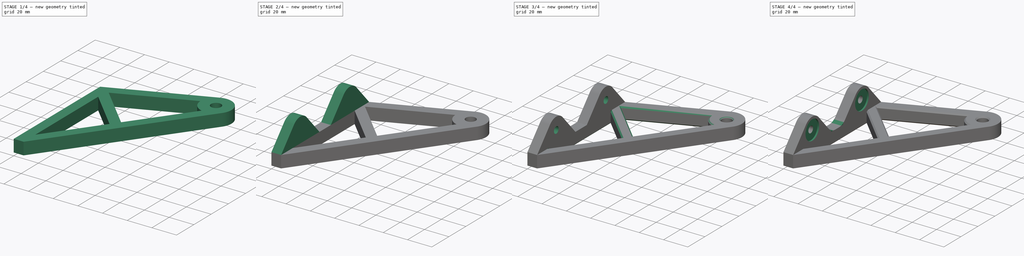
[diagram: build sequence overview — one tinted view per stage of 4, left to right]
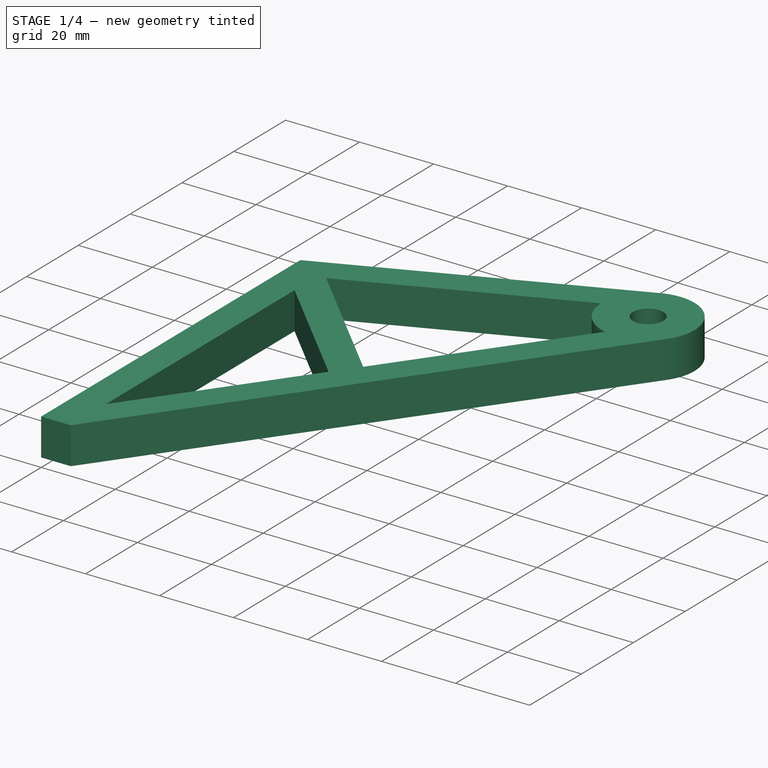
[diagram: stage 1 of 4 — iso view after this stage's code; geometry added in this stage tinted green]
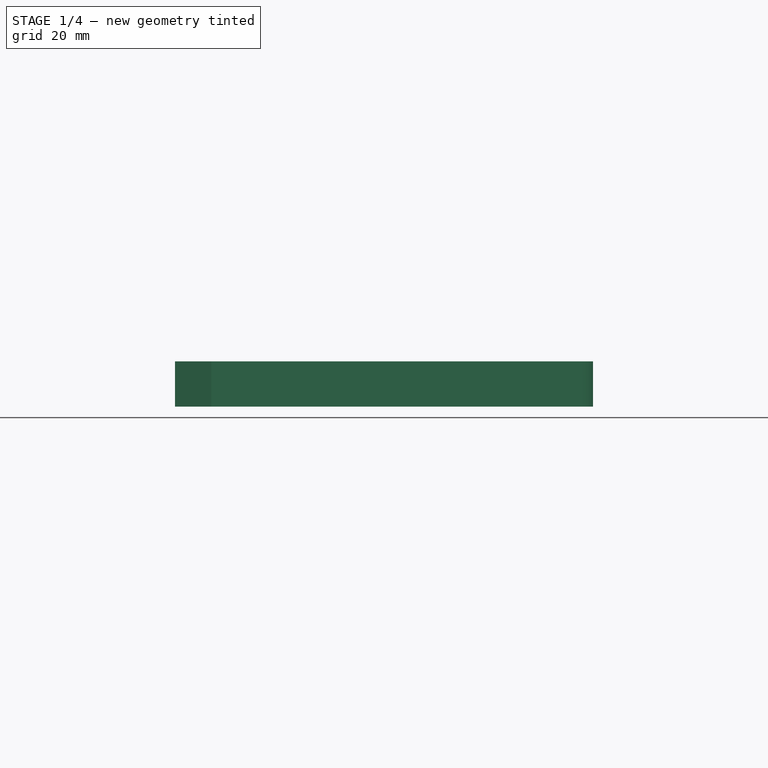
[diagram: stage 1 of 4 — front view after this stage's code; geometry added in this stage tinted green]
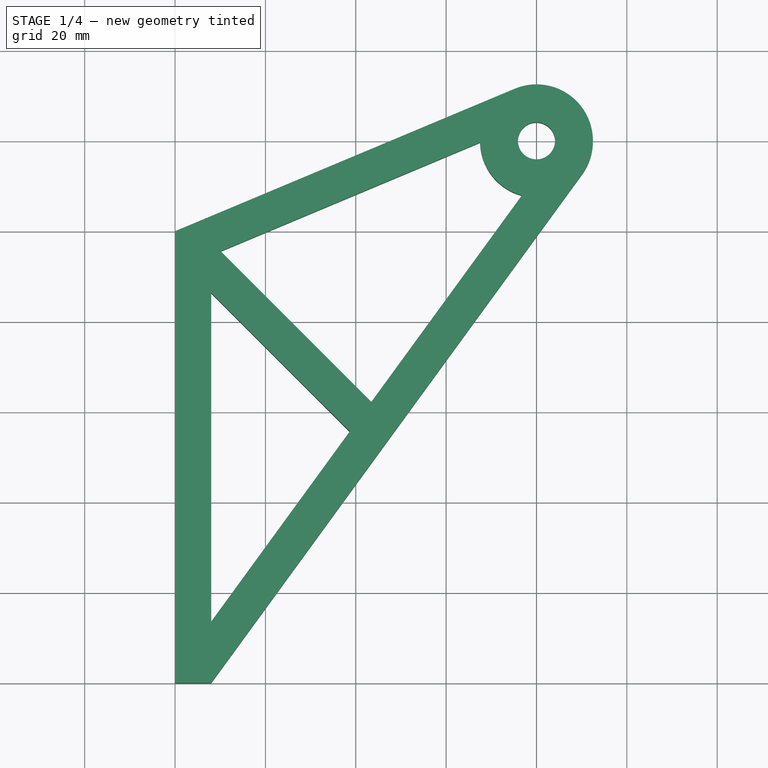
[diagram: stage 1 of 4 — top view after this stage's code; geometry added in this stage tinted green]
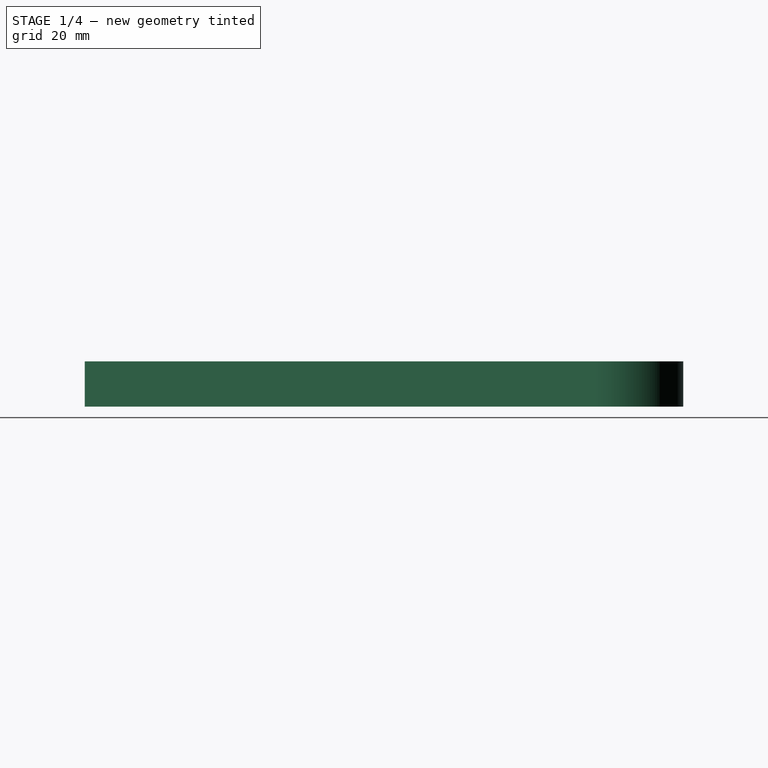
[diagram: stage 1 of 4 — right view after this stage's code; geometry added in this stage tinted green]
FCSTD DOCUMENT  (FreeCAD 0.19R23578 (Git))
Label: tube_attachment
License: All rights reserved
LicenseURL: http://en.wikipedia.org/wiki/All_rights_reserved
objects: Sketcher::SketchObject×6, PartDesign::Pocket×4, PartDesign::Pad×2, PartDesign::Plane×2, PartDesign::Chamfer×2, Spreadsheet::Sheet×1, PartDesign::Fillet×1, PartDesign::Body×1
note: 27 computed .brp shape members not serialized (recipe doc carries the construction recipe); baked Part::Feature solids carry a one-line shape summary decoded from their .brp

FEATURE [Sketcher::SketchObject] Sketch
  MapMode = 5
  Support = -> [XY_Plane]
  expr: Constraints[16] = Spreadsheet.pad_thickness
  expr: Constraints[6] = Spreadsheet.pad_height
  expr: Constraints[7] = Spreadsheet.pad_thickness
  expr: Constraints[9] = Spreadsheet.tube_diameter + Spreadsheet.tube_diameter_tol
  expr: Constraints[14] = Spreadsheet.tube_y_distance
  expr: Constraints[10] = Spreadsheet.tube_wall_distance
  sketch-geometry (7):
    g0: LineSegment StartX=0 StartY=0 StartZ=0 EndX=0 EndY=100 EndZ=0
    g1: LineSegment StartX=0 StartY=100 StartZ=0 EndX=75.1651 EndY=131.527 EndZ=0
    g2: ArcOfCircle CenterX=80 CenterY=120 CenterZ=0 NormalX=0 NormalY=0 NormalZ=1 AngleXU=0 Radius=12.5 StartAngle=5.65332 EndAngle=8.25113
    g3: LineSegment StartX=90.1014 StartY=112.637 StartZ=0 EndX=8 EndY=0 EndZ=0
    g4: LineSegment StartX=8 StartY=0 StartZ=0 EndX=0 EndY=0 EndZ=0
    g5: Circle CenterX=80 CenterY=120 CenterZ=0 NormalX=0 NormalY=0 NormalZ=1 AngleXU=0 Radius=4.1
    g6: GeomPoint X=8 Y=103.356 Z=0
  constraints (17):
    c: Coincident(g0,g-1)
    c: PointOnObject(g0,g-2)
    c: Coincident(g1,g0)
    c: PointOnObject(g3,g-1)
    c: Coincident(g4,g3)
    c: Coincident(g4,g0)
    c: DistanceY(g0,g0) = 100
    c: DistanceX(g4,g4) = 8
    c: Coincident(g5,g2)
    c: Diameter(g5) = 8.2
    c: DistanceX(g0,g2) = 80
    c: Tangent(g2,g3) = 1.5708
    c: Tangent(g2,g1) = 1.5708
    c: Diameter(g2) = 25  'outer_diameter'
    c: DistanceY(g0,g2) = 120
    c: PointOnObject(g6,g1)
    c: DistanceX(g0,g6) = 8
FEATURE [Spreadsheet::Sheet] Spreadsheet
  cells = A1=pad_height; B1(pad_height)=100; A2=pad_width; B2(pad_width)=20; A3=pad_thickness; B3(pad_thickness)=8; A4=tube_diameter; B4(tube_diameter)=8; A5=tube_diameter_tol; B5(tube_diameter_tol)=0.2; A6=tube_wall_distance; B6(tube_wall_distance)=80; A7=tube_y_distance; B7(tube_y_distance)=120; A8=part_thickness; B8(part_thickness)=10; A9=hole_distance; B9(hole_distance)=10; A10=pad_length; B10(pad_length)==(pad_height - 10) / 2; A11=screw_hole_dia; B11(screw_hole_dia)=5.5; A12=washer_pocket_dia; B12(washer_pocket_dia)=16
FEATURE [PartDesign::Pad] Pad
  Direction = (1,1,1)
  Length = 10
  Length2 = 100
  Profile = -> Sketch
  Type = 0
  expr: Length = Spreadsheet.part_thickness
FEATURE [PartDesign::Plane] DatumPlane
  AttachmentOffset = pos=(0,0,10) rot=(0,0,1;0rad)
  Length = 144.661
  MapMode = 5
  Placement = pos=(0,0,10) rot=(0,0,1;0rad)
  ResizeMode = 0
  Support = -> [XY_Plane]
  Width = 184.665
  expr: .AttachmentOffset.Base.z = Spreadsheet.part_thickness
FEATURE [Sketcher::SketchObject] Sketch001
  ExternalGeometry = -> [Sketch]
  MapMode = 5
  Placement = pos=(0,0,10) rot=(0,0,1;0rad)
  Support = -> [DatumPlane]
  expr: Constraints[15] = Sketch.Constraints.outer_diameter
  expr: Constraints[33] = Spreadsheet.pad_thickness / 2
  expr: Constraints[22] = Spreadsheet.pad_thickness
  expr: Constraints[29] = Spreadsheet.pad_thickness / 2
  expr: Constraints[38] = Spreadsheet.pad_thickness
  expr: Constraints[37] = Spreadsheet.pad_thickness
  sketch-geometry (13):
    g0: LineSegment StartX=8 StartY=13.5816 StartZ=0 EndX=8 EndY=86.3431 EndZ=0
    g1: LineSegment StartX=8 StartY=13.5816 StartZ=0 EndX=38.6761 EndY=55.667 EndZ=0
    g2: LineSegment StartX=38.6761 StartY=55.667 StartZ=0 EndX=8 EndY=86.3431 EndZ=0
    g3: LineSegment StartX=0 StartY=100 StartZ=0 EndX=46.787 EndY=53.213 EndZ=0
    g4: ArcOfCircle CenterX=80 CenterY=120 CenterZ=0 NormalX=0 NormalY=0 NormalZ=1 AngleXU=0 Radius=12.5 StartAngle=3.17047 EndAngle=4.4508
    g5: LineSegment StartX=67.5052 StartY=119.639 StartZ=0 EndX=10.097 EndY=95.5598 EndZ=0
    g6: LineSegment StartX=10.097 StartY=95.5598 StartZ=0 EndX=43.446 EndY=62.2109 EndZ=0
    g7: LineSegment StartX=76.7673 StartY=107.925 StartZ=0 EndX=43.446 EndY=62.2109 EndZ=0
    g8: LineSegment StartX=51.8152 StartY=113.058 StartZ=0 EndX=48.7209 EndY=120.435 EndZ=0
    g9: LineSegment StartX=244.157 StartY=-138.5 StartZ=0 EndX=241.328 EndY=-141.328 EndZ=0
    g10: LineSegment StartX=56.7895 StartY=80.5173 StartZ=0 EndX=63.2544 EndY=75.805 EndZ=0
    g11: LineSegment StartX=236.61 StartY=-142.267 StartZ=0 EndX=239.439 EndY=-139.439 EndZ=0
    g12: LineSegment StartX=20.9716 StartY=31.3776 StartZ=0 EndX=27.4364 EndY=26.6654 EndZ=0
  constraints (39):
    c: Coincident(g1,g0)
    c: Coincident(g2,g0)
    c: Coincident(g2,g1)
    c: Coincident(g3,g-3)
    c: Angle(g-3,g3) = 0.785398
    c: PointOnObject(g3,g-4)
    c: Parallel(g2,g3)
    c: Parallel(g1,g-4)
    c: Vertical(g0,g-4)
    c: Parallel(g0,g-3)
    c: Coincident(g4,g-5)
    c: Coincident(g5,g4)
    c: Coincident(g6,g5)
    c: Coincident(g7,g4)
    c: Coincident(g7,g6)
    c: Diameter(g4) = 25
    c: Parallel(g7,g-4)
    c: Parallel(g5,g-6)
    c: Parallel(g6,g3)
    c: PointOnObject(g8,g5)
    c: PointOnObject(g8,g-6)
    c: Perpendicular(g5,g8)
    c: Distance(g8) = 8
    c: PointOnObject(g9,g6)
    c: PointOnObject(g9,g3)
    c: Perpendicular(g6,g9)
    c: PointOnObject(g10,g7)
    c: PointOnObject(g10,g-4)
    c: Perpendicular(g7,g10)
    c: Distance(g9) = 4
    c: PointOnObject(g11,g2)
    c: PointOnObject(g11,g3)
    c: Perpendicular(g2,g11)
    c: Distance(g11) = 4
    c: PointOnObject(g12,g1)
    c: PointOnObject(g12,g-4)
    c: Perpendicular(g1,g12)
    c: Distance(g12) = 8
    c: Distance(g10) = 8
FEATURE [PartDesign::Pocket] Pocket
  BaseFeature = -> Pad
  Length = 10
  Length2 = 100
  Profile = -> Sketch001
  Type = 0
  expr: Length = Spreadsheet.part_thickness
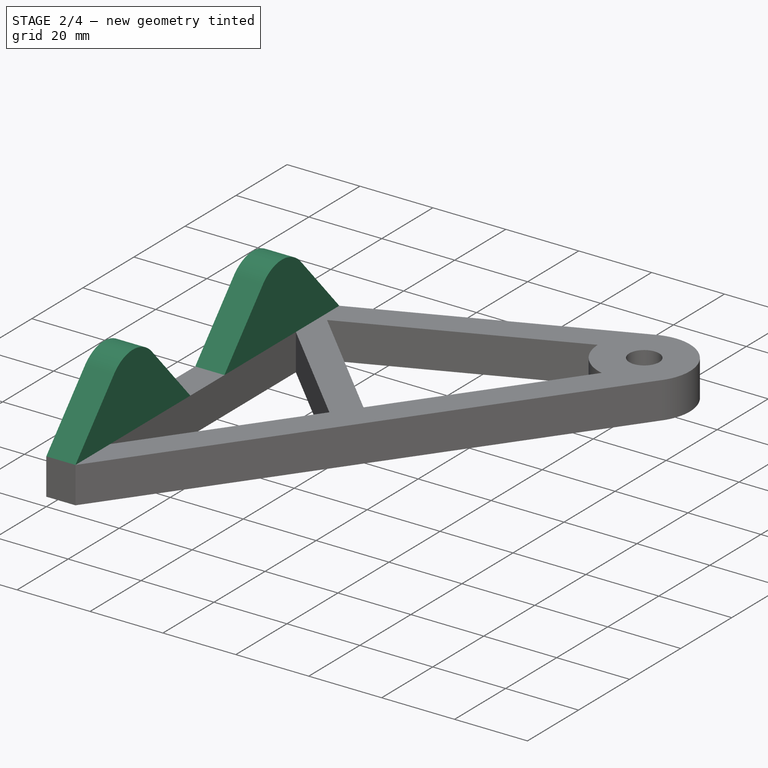
[diagram: stage 2 of 4 — iso view after this stage's code; geometry added in this stage tinted green]
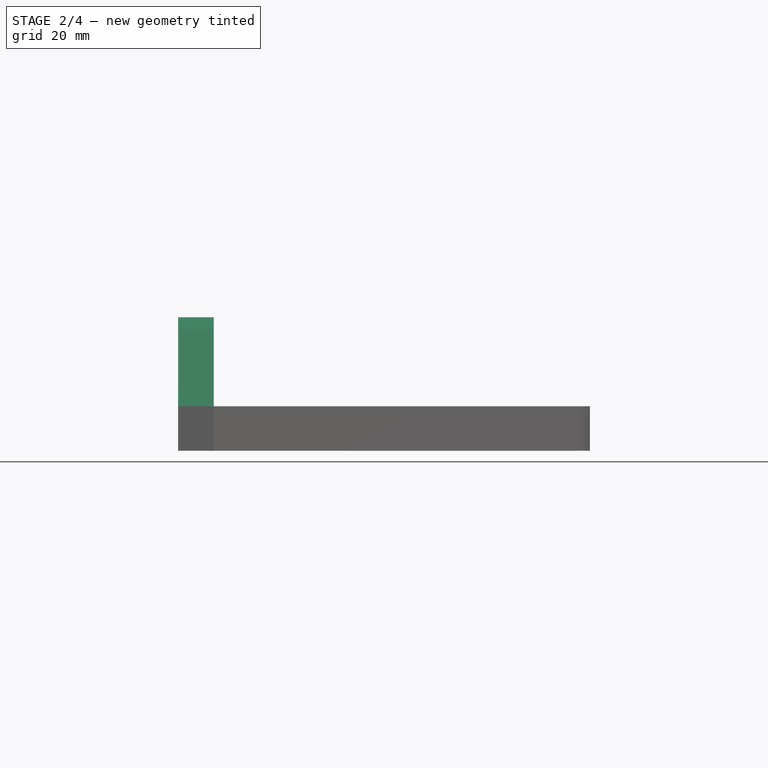
[diagram: stage 2 of 4 — front view after this stage's code; geometry added in this stage tinted green]
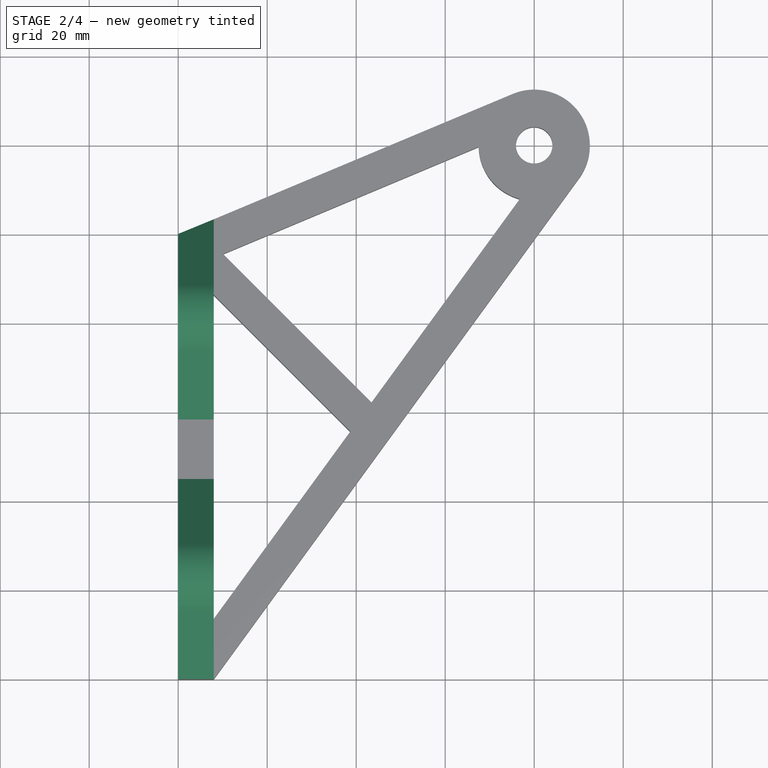
[diagram: stage 2 of 4 — top view after this stage's code; geometry added in this stage tinted green]
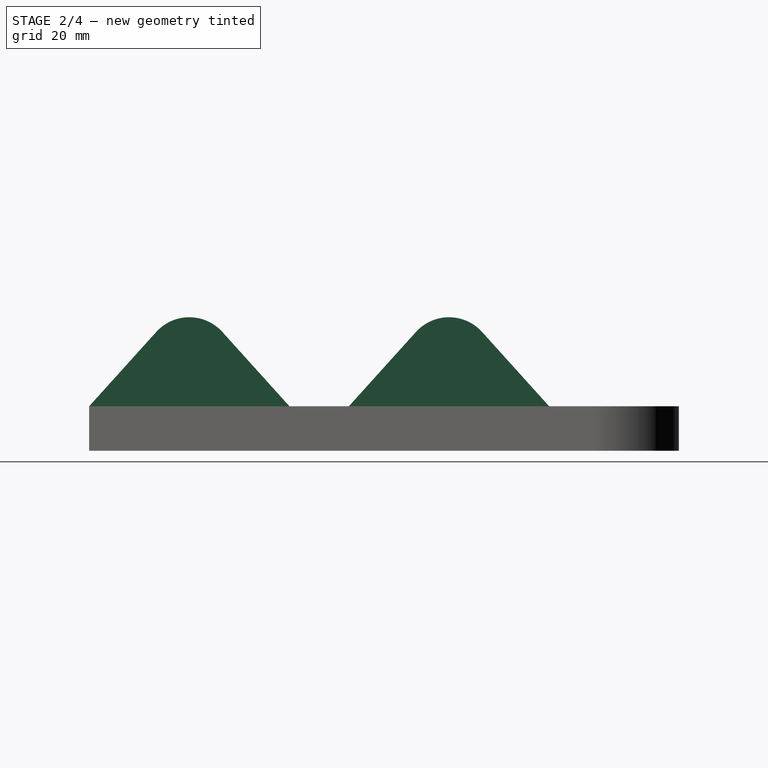
[diagram: stage 2 of 4 — right view after this stage's code; geometry added in this stage tinted green]
FEATURE [PartDesign::Plane] DatumPlane001
  Length = 176.077
  MapMode = 7
  Placement = pos=(8,0,0) rot=(0.57735,0.57735,0.57735;2.0944rad)
  ResizeMode = 0
  Support = -> [Sketch]
  Width = 73.6124
FEATURE [Sketcher::SketchObject] Sketch002
  ExternalGeometry = -> [Sketch]
  MapMode = 5
  Placement = pos=(8,0,0) rot=(0.57735,0.57735,0.57735;2.0944rad)
  Support = -> [DatumPlane001]
  expr: Constraints[10] = Spreadsheet.part_thickness
  expr: Constraints[27] = Spreadsheet.pad_length
  expr: Constraints[55] = Spreadsheet.pad_width - Spreadsheet.hole_distance
  expr: Constraints[26] = Spreadsheet.hole_distance
  expr: Constraints[32] = Spreadsheet.hole_distance
  expr: Constraints[33] = Spreadsheet.pad_length
  expr: .Constraints.top_radius = Spreadsheet.pad_width - Spreadsheet.hole_distance
  sketch-geometry (19):
    g0: LineSegment StartX=103.356 StartY=0 StartZ=0 EndX=0 EndY=0 EndZ=0
    g1: LineSegment StartX=0 StartY=0 StartZ=0 EndX=0 EndY=10 EndZ=0
    g2: LineSegment StartX=0 StartY=10 StartZ=0 EndX=103.356 EndY=10 EndZ=0
    g3: LineSegment StartX=103.356 StartY=10 StartZ=0 EndX=103.356 EndY=0 EndZ=0
    g4: LineSegment StartX=0 StartY=10 StartZ=0 EndX=15.0773 EndY=26.701 EndZ=0
    g5: LineSegment StartX=29.9227 StartY=26.701 StartZ=0 EndX=45 EndY=10 EndZ=0
    g6: ArcOfCircle CenterX=22.5 CenterY=20 CenterZ=0 NormalX=0 NormalY=0 NormalZ=1 AngleXU=0 Radius=10 StartAngle=0.734348 EndAngle=2.40725
    g7: LineSegment StartX=51.6778 StartY=0 StartZ=0 EndX=51.6778 EndY=32.54 EndZ=0
    g8: LineSegment StartX=0 StartY=4 StartZ=0 EndX=51.6778 EndY=4 EndZ=0
    g9: LineSegment StartX=51.6778 StartY=4 StartZ=0 EndX=103.356 EndY=4 EndZ=0
    g10: LineSegment StartX=103.356 StartY=10 StartZ=0 EndX=88.2781 EndY=26.701 EndZ=0
    g11: ArcOfCircle CenterX=80.8554 CenterY=20 CenterZ=0 NormalX=0 NormalY=0 NormalZ=1 AngleXU=0 Radius=10 StartAngle=0.734347 EndAngle=2.40725
    g12: LineSegment StartX=73.4327 StartY=26.701 StartZ=0 EndX=58.3555 EndY=10 EndZ=0
    g13: LineSegment StartX=45 StartY=10 StartZ=0 EndX=58.3555 EndY=10 EndZ=0
    g14: LineSegment StartX=0 StartY=10 StartZ=0 EndX=-25 EndY=10 EndZ=0
    g15: LineSegment StartX=103.356 StartY=10 StartZ=0 EndX=128.356 EndY=10 EndZ=0
    g16: LineSegment StartX=-25 StartY=10 StartZ=0 EndX=-25 EndY=50 EndZ=0
    g17: LineSegment StartX=-25 StartY=50 StartZ=0 EndX=128.356 EndY=50 EndZ=0
    g18: LineSegment StartX=128.356 StartY=50 StartZ=0 EndX=128.356 EndY=10 EndZ=0
  constraints (58):
    c: Coincident(g0,g1)
    c: Coincident(g1,g2)
    c: Coincident(g2,g3)
    c: Coincident(g3,g0)
    c: Horizontal(g0)
    c: Horizontal(g2)
    c: Vertical(g1)
    c: Vertical(g3)
    c: Coincident(g0,g-3)
    c: PointOnObject(g1,g-2)
    c: Distance(g3) = 10
    c: Coincident(g4,g1)
    c: PointOnObject(g5,g2)
    c: Coincident(g6,g4)
    c: Coincident(g6,g5)
    c: PointOnObject(g7,g0)
    c: Vertical(g7)
    c: PointOnObject(g8,g1)
    c: PointOnObject(g8,g7)
    c: Horizontal(g8)
    c: Coincident(g9,g8)
    c: PointOnObject(g9,g3)
    c: Horizontal(g9)
    c: Equal(g9,g8)
    c: Tangent(g6,g5)
    c: Tangent(g6,g4)
    c: DistanceY(g4,g6) = 10
    c: DistanceX(g4,g5) = 45
    c: Coincident(g11,g10)
    c: Coincident(g11,g12)
    c: Tangent(g11,g12)
    c: Tangent(g11,g10)
    c: DistanceY(g10,g11) = 10
    c: DistanceX(g12,g10) = 45
    c: Coincident(g10,g2)
    c: PointOnObject(g12,g2)
    c: Coincident(g13,g5)
    c: Coincident(g13,g12)
    c: Coincident(g14,g4)
    c: Horizontal(g14)
    c: Coincident(g15,g10)
    c: Horizontal(g15)
    c: Coincident(g16,g14)
    c: Vertical(g16)
    c: Coincident(g17,g16)
    c: Horizontal(g17)
    c: Coincident(g18,g17)
    c: Vertical(g18)
    c: Coincident(g18,g15)
    c: DistanceY(g18,g18) = 40
    c: DistanceX(g15,g15) = 25
    c: Equal(g15,g14)
    c: DistanceY(g0,g9) = 4
    c: Distance(g7) = 32.54
    c: Radius(g6) = 10  'top_radius'
    c: Radius(g11) = 10
    c: Horizontal(g5,g4)
    c: Horizontal(g11,g10)
FEATURE [Sketcher::SketchObject] Sketch003
  ExternalGeometry = -> [Sketch002,Sketch]
  MapMode = 5
  Placement = pos=(0,0,10) rot=(0,0,1;0rad)
  Support = -> [DatumPlane]
  sketch-geometry (4):
    g0: LineSegment StartX=0 StartY=100 StartZ=0 EndX=0 EndY=0 EndZ=0
    g1: LineSegment StartX=8 StartY=0 StartZ=0 EndX=0 EndY=0 EndZ=0
    g2: LineSegment StartX=0 StartY=100 StartZ=0 EndX=8 EndY=103.356 EndZ=0
    g3: LineSegment StartX=8 StartY=103.356 StartZ=0 EndX=8 EndY=0 EndZ=0
  constraints (10):
    c: Coincident(g0,g-4)
    c: PointOnObject(g0,g-1)
    c: Vertical(g0)
    c: PointOnObject(g1,g-1)
    c: Coincident(g1,g0)
    c: Coincident(g2,g0)
    c: Coincident(g2,g-3)
    c: Coincident(g3,g2)
    c: Coincident(g3,g1)
    c: Vertical(g3)
FEATURE [PartDesign::Pad] Pad001
  BaseFeature = -> Pocket
  Direction = (1,1,1)
  Length = 20
  Length2 = 100
  Profile = -> Sketch003
  Type = 0
  expr: Length = Spreadsheet.pad_width
FEATURE [PartDesign::Pocket] Pocket001
  BaseFeature = -> Pad001
  Length = 10
  Length2 = 100
  Profile = -> Sketch002
  Type = 0
  expr: Length = Spreadsheet.part_thickness
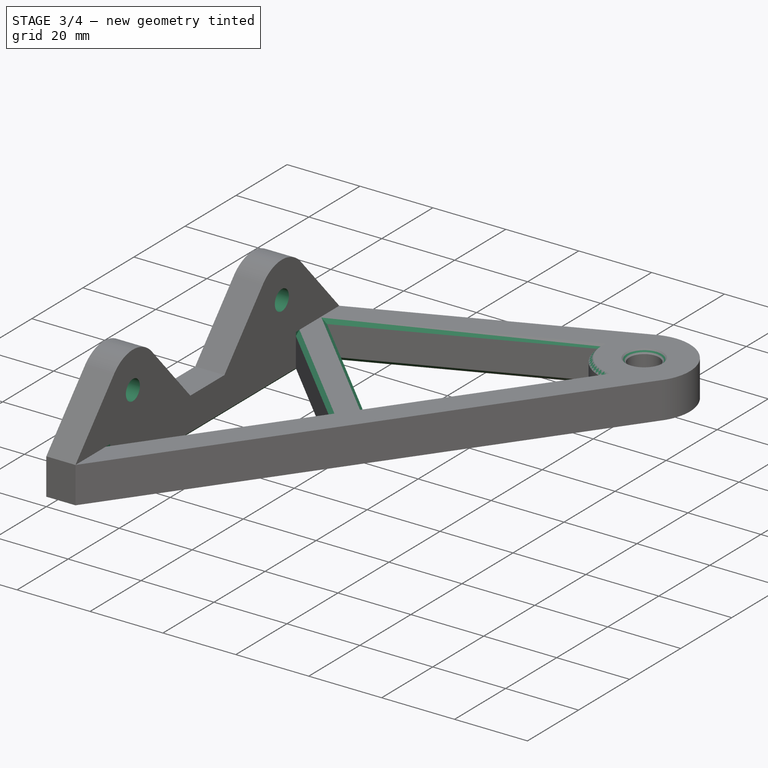
[diagram: stage 3 of 4 — iso view after this stage's code; geometry added in this stage tinted green]
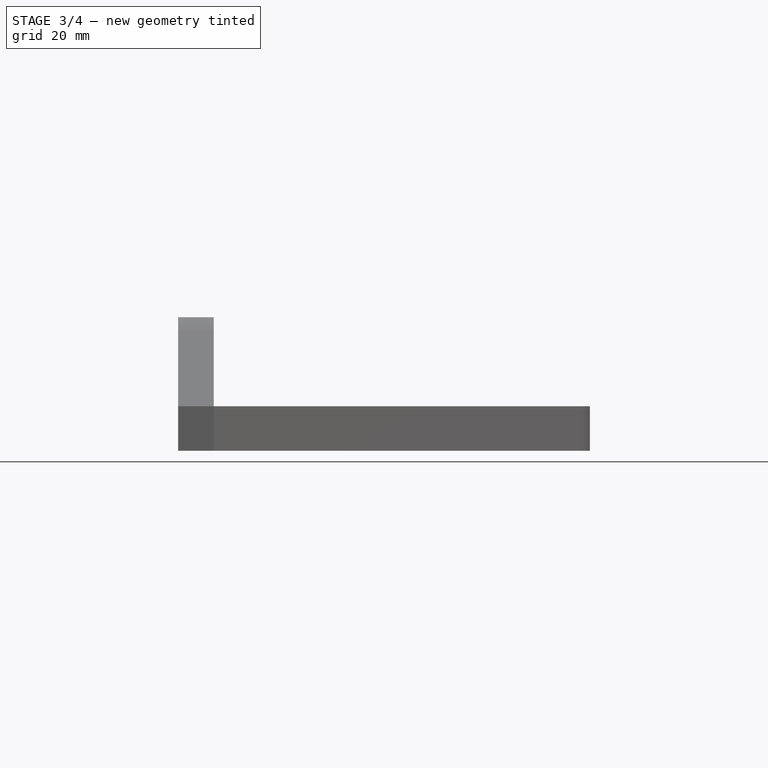
[diagram: stage 3 of 4 — front view after this stage's code; geometry added in this stage tinted green]
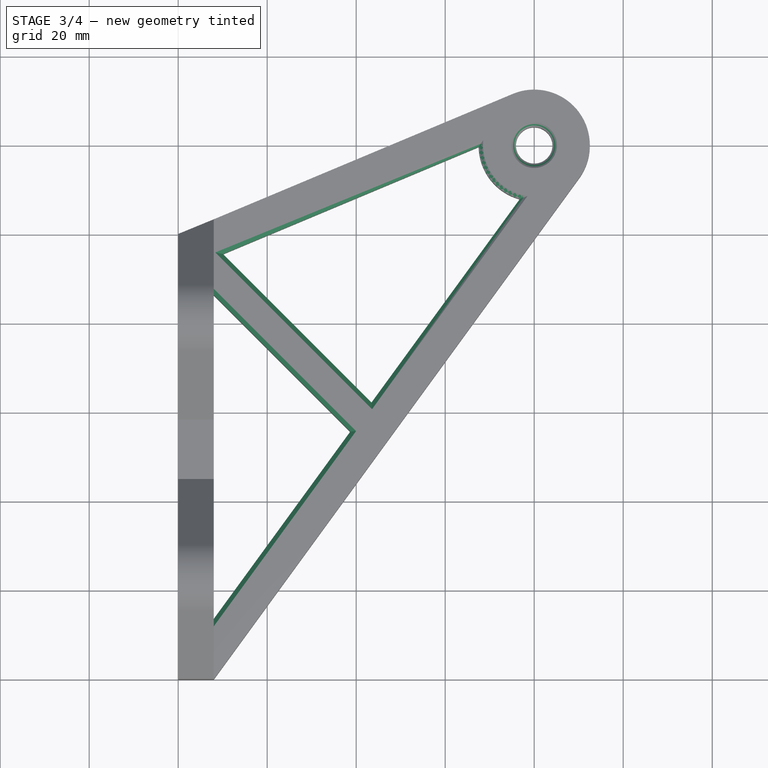
[diagram: stage 3 of 4 — top view after this stage's code; geometry added in this stage tinted green]
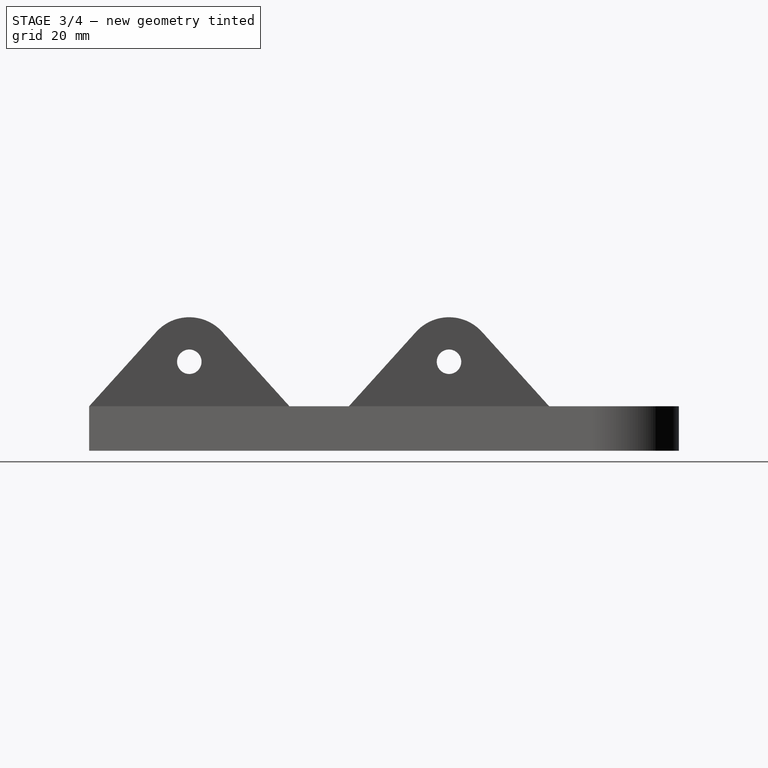
[diagram: stage 3 of 4 — right view after this stage's code; geometry added in this stage tinted green]
FEATURE [PartDesign::Chamfer] Chamfer
  Angle = 45
  Base = -> Pocket001 [Edge50,Edge19]
  BaseFeature = -> Pocket001
  ChamferType = 0
  FlipDirection = false
  Size = 1
  Size2 = 1
  SupportTransform = false
FEATURE [PartDesign::Chamfer] Chamfer001
  Angle = 45
  Base = -> Chamfer [Edge44,Edge39,Edge41,Edge43,Edge35,Edge36,Edge10,Edge11,Edge12,Edge13,Edge9,Edge7,Edge8]
  BaseFeature = -> Chamfer
  ChamferType = 0
  FlipDirection = false
  Size = 1
  Size2 = 1
  SupportTransform = false
FEATURE [Sketcher::SketchObject] Sketch004
  ExternalGeometry = -> [Sketch002]
  MapMode = 5
  Placement = pos=(8,0,0) rot=(0.57735,0.57735,0.57735;2.0944rad)
  Support = -> [DatumPlane001]
  expr: Constraints[3] = Spreadsheet.screw_hole_dia
  expr: Constraints[1] = Spreadsheet.screw_hole_dia
  sketch-geometry (2):
    g0: Circle CenterX=22.5 CenterY=20 CenterZ=0 NormalX=0 NormalY=0 NormalZ=1 AngleXU=0 Radius=2.75
    g1: Circle CenterX=80.8554 CenterY=20 CenterZ=0 NormalX=0 NormalY=0 NormalZ=1 AngleXU=0 Radius=2.75
  constraints (4):
    c: Coincident(g0,g-3)
    c: Diameter(g0) = 5.5
    c: Coincident(g1,g-4)
    c: Diameter(g1) = 5.5
FEATURE [PartDesign::Pocket] Pocket002
  BaseFeature = -> Chamfer001
  Length = 5
  Length2 = 100
  Profile = -> Sketch004
  Type = 1
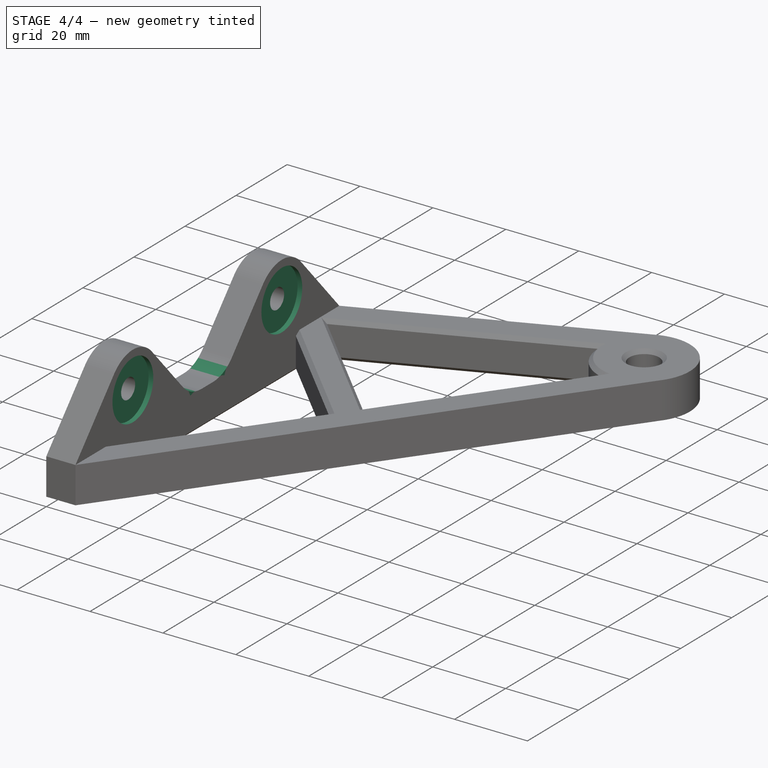
[diagram: stage 4 of 4 — iso view after this stage's code; geometry added in this stage tinted green]
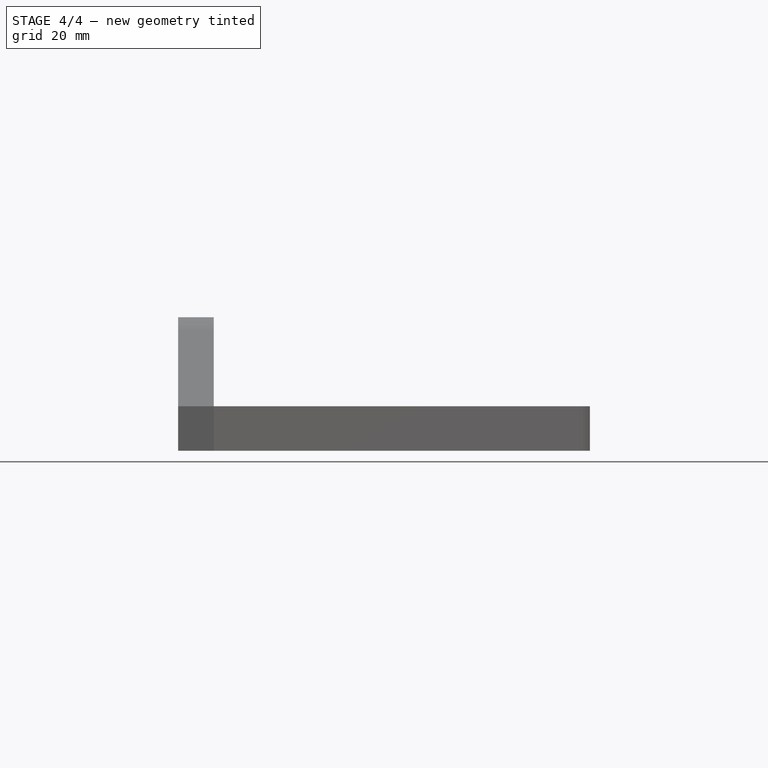
[diagram: stage 4 of 4 — front view after this stage's code; geometry added in this stage tinted green]
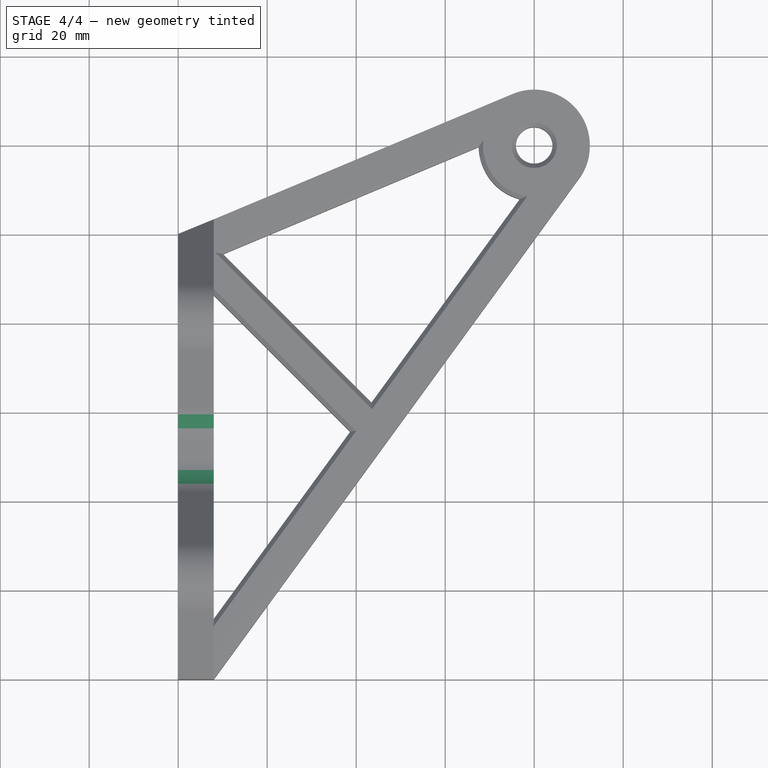
[diagram: stage 4 of 4 — top view after this stage's code; geometry added in this stage tinted green]
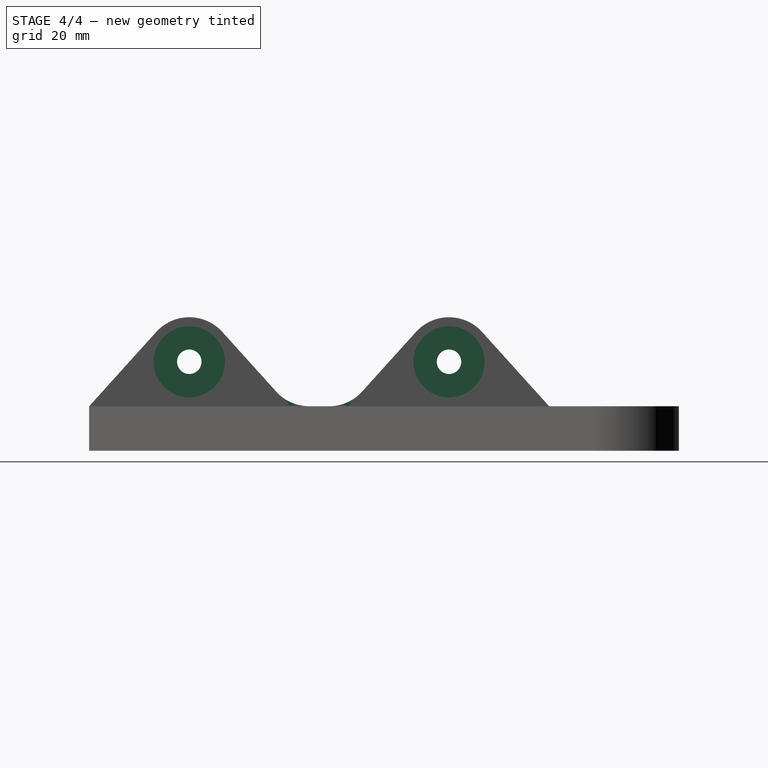
[diagram: stage 4 of 4 — right view after this stage's code; geometry added in this stage tinted green]
FEATURE [Sketcher::SketchObject] Sketch005
  ExternalGeometry = -> [Sketch004]
  MapMode = 5
  Placement = pos=(8,0,0) rot=(0.57735,0.57735,0.57735;2.0944rad)
  Support = -> [DatumPlane001]
  expr: Constraints[3] = Spreadsheet.washer_pocket_dia
  expr: Constraints[2] = Spreadsheet.washer_pocket_dia
  sketch-geometry (2):
    g0: Circle CenterX=22.5 CenterY=20 CenterZ=0 NormalX=0 NormalY=0 NormalZ=1 AngleXU=0 Radius=8
    g1: Circle CenterX=80.8554 CenterY=20 CenterZ=0 NormalX=0 NormalY=0 NormalZ=1 AngleXU=0 Radius=8
  constraints (4):
    c: Coincident(g0,g-3)
    c: Coincident(g1,g-4)
    c: Diameter(g1) = 16
    c: Diameter(g0) = 16
FEATURE [PartDesign::Pocket] Pocket003
  BaseFeature = -> Pocket002
  Length = 1.3
  Length2 = 100
  Profile = -> Sketch005
  Type = 0
FEATURE [PartDesign::Fillet] Fillet
  Base = -> Pocket003 [Edge59,Edge60]
  BaseFeature = -> Pocket003
  Radius = 10
  SupportTransform = false
  expr: Radius = Spreadsheet.pad_height - 2 * Spreadsheet.pad_length
FEATURE [PartDesign::Body] Body
  Group = -> [Sketch,Pad,DatumPlane,Sketch001,Pocket,DatumPlane001,Sketch002,Sketch003,Pad001,Pocket001,Chamfer,Chamfer001,Sketch004,Pocket002,Sketch005,Pocket003,Fillet]
  Origin = -> Origin
  Tip = -> Fillet
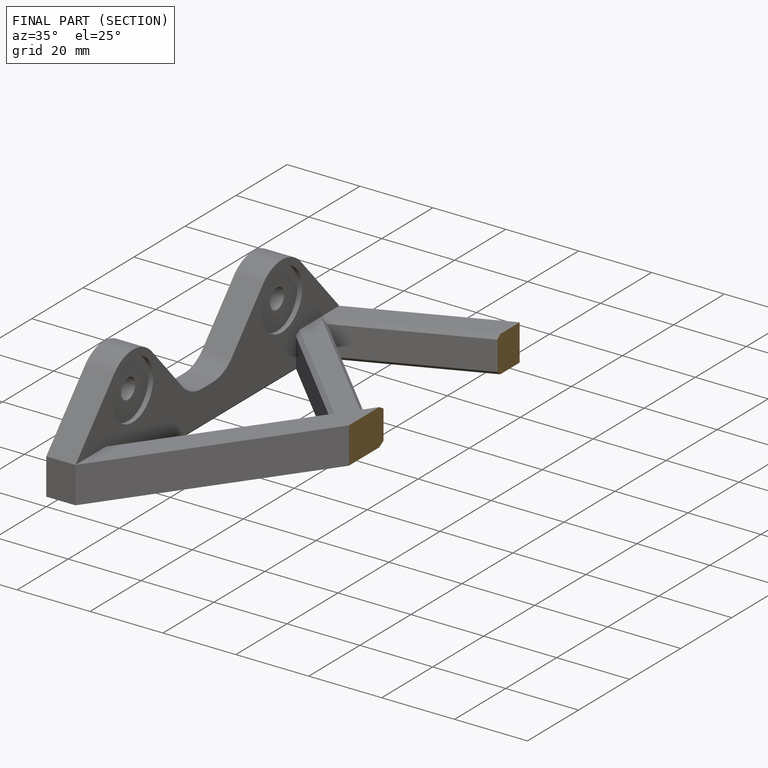
[diagram: finished part — half-section view (interior)]
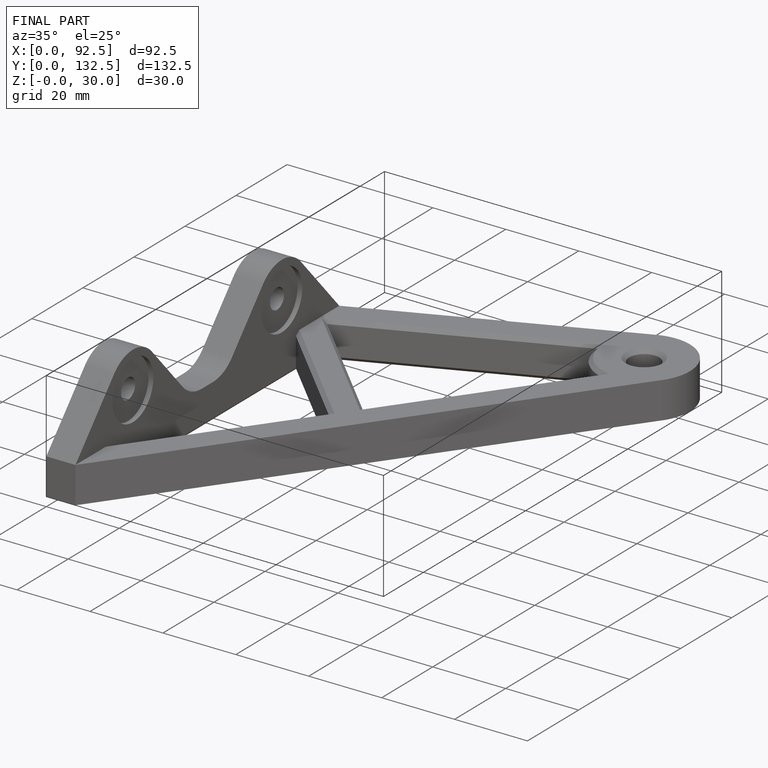
[diagram: finished part — iso view with bounding-box wireframe]
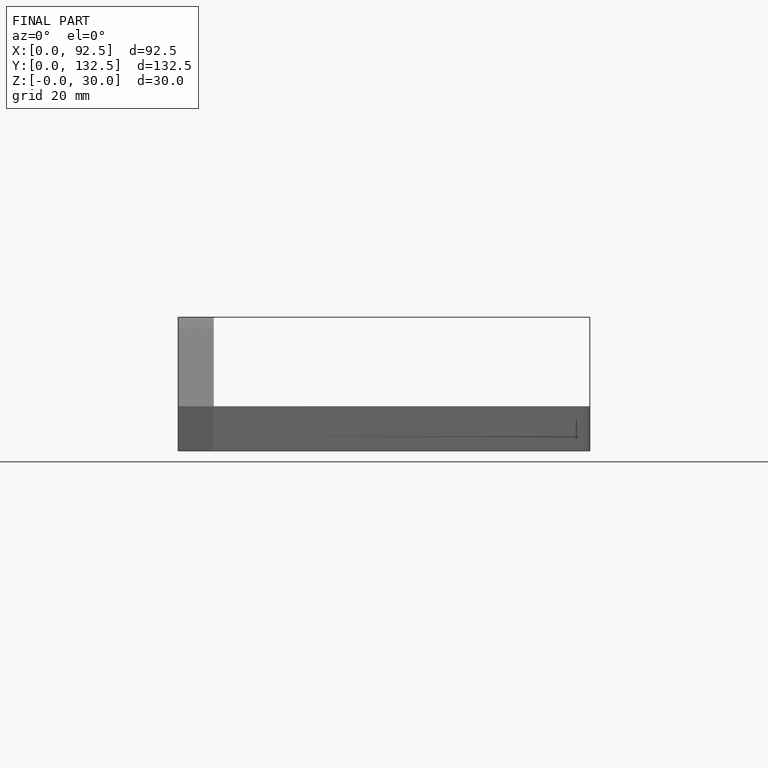
[diagram: finished part — front view with bounding-box wireframe]
